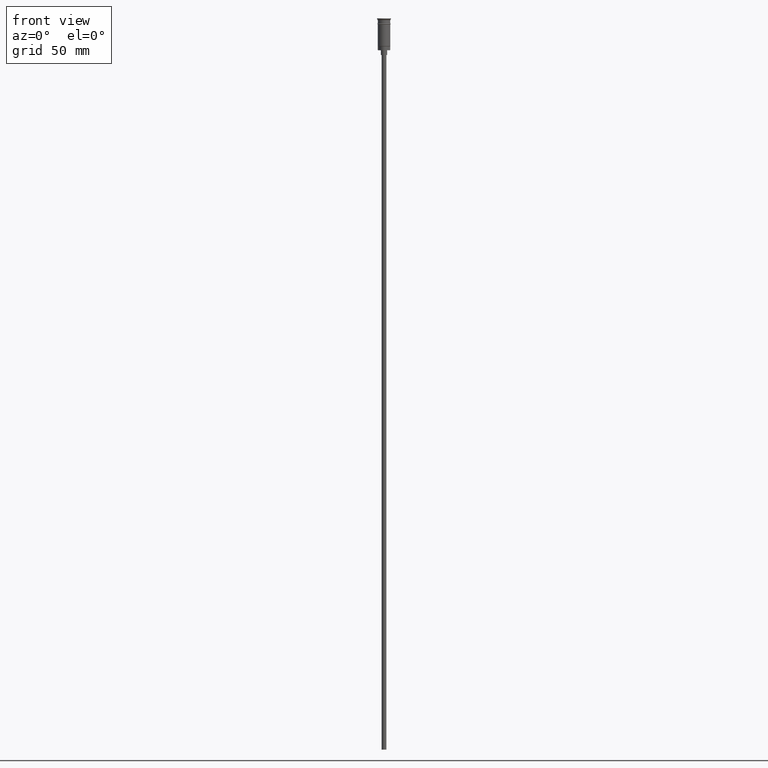
[diagram: clean part render]
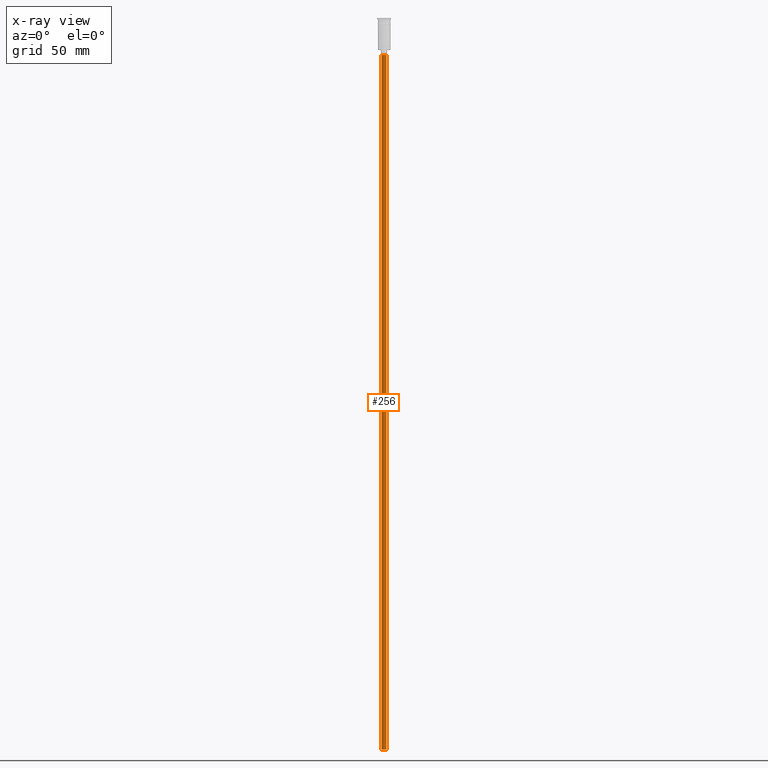
[diagram: x-ray — body ghosted, one internal face saturated and labeled with its STEP entity id]
A machine part, front view, then the same camera in x-ray: the body is ghosted and one INTERNAL B-rep face — a face not visible from any outside direction — is saturated and labeled: STEP entity #256.
In plain terms, the highlighted cylindrical surface (edge-blend (fillet) strip) has radius 1.5 mm, axis along (-0, -0, 1).
Its self-contained STEP definition (entity closure, byte-faithful):
#9 = CARTESIAN_POINT ( 'NONE',  ( 0.000000000000000000, 0.000000000000000000, -470.5000000000000568 ) ) ;
#71 = VECTOR ( 'NONE', #627, 1000.000000000000000 ) ;
#114 = VERTEX_POINT ( 'NONE', #1165 ) ;
#129 = DIRECTION ( 'NONE',  ( -1.000000000000000000, 0.000000000000000000, 0.000000000000000000 ) ) ;
#130 = CARTESIAN_POINT ( 'NONE',  ( -1.500000000000000222, 1.836970198721030181E-16, -470.5000000000000568 ) ) ;
#256 = ADVANCED_FACE ( 'NONE', ( #1451 ), #728, .T. ) ;
#358 = DIRECTION ( 'NONE',  ( -0.000000000000000000, -0.000000000000000000, 1.000000000000000000 ) ) ;
#368 = EDGE_CURVE ( 'NONE', #673, #114, #785, .T. ) ;
#382 = EDGE_LOOP ( 'NONE', ( #495, #1078, #1338, #712 ) ) ;
#392 = VERTEX_POINT ( 'NONE', #1518 ) ;
#495 = ORIENTED_EDGE ( 'NONE', *, *, #368, .F. ) ;
#554 = AXIS2_PLACEMENT_3D ( 'NONE', #9, #1128, #625 ) ;
#621 = CARTESIAN_POINT ( 'NONE',  ( 1.500000000000000222, 0.000000000000000000, -23.49999999999999645 ) ) ;
#625 = DIRECTION ( 'NONE',  ( -1.000000000000000000, 0.000000000000000000, 0.000000000000000000 ) ) ;
#627 = DIRECTION ( 'NONE',  ( -0.000000000000000000, -0.000000000000000000, 1.000000000000000000 ) ) ;
#673 = VERTEX_POINT ( 'NONE', #1322 ) ;
#712 = ORIENTED_EDGE ( 'NONE', *, *, #800, .T. ) ;
#728 = CYLINDRICAL_SURFACE ( 'NONE', #1051, 1.500000000000000222 ) ;
#785 = LINE ( 'NONE', #130, #71 ) ;
#800 = EDGE_CURVE ( 'NONE', #1511, #114, #1064, .T. ) ;
#828 = EDGE_CURVE ( 'NONE', #392, #673, #908, .T. ) ;
#843 = LINE ( 'NONE', #1211, #889 ) ;
#863 = AXIS2_PLACEMENT_3D ( 'NONE', #867, #1378, #129 ) ;
#867 = CARTESIAN_POINT ( 'NONE',  ( 0.000000000000000000, 0.000000000000000000, -23.49999999999999645 ) ) ;
#889 = VECTOR ( 'NONE', #1469, 1000.000000000000000 ) ;
#908 = CIRCLE ( 'NONE', #554, 1.500000000000000222 ) ;
#1051 = AXIS2_PLACEMENT_3D ( 'NONE', #1210, #358, #1217 ) ;
#1064 = CIRCLE ( 'NONE', #863, 1.500000000000000222 ) ;
#1078 = ORIENTED_EDGE ( 'NONE', *, *, #828, .F. ) ;
#1128 = DIRECTION ( 'NONE',  ( 0.000000000000000000, 0.000000000000000000, -1.000000000000000000 ) ) ;
#1165 = CARTESIAN_POINT ( 'NONE',  ( -1.500000000000000222, 1.836970198721030181E-16, -23.49999999999999645 ) ) ;
#1210 = CARTESIAN_POINT ( 'NONE',  ( 0.000000000000000000, 0.000000000000000000, -470.5000000000000568 ) ) ;
#1211 = CARTESIAN_POINT ( 'NONE',  ( 1.500000000000000222, 0.000000000000000000, -470.5000000000000568 ) ) ;
#1217 = DIRECTION ( 'NONE',  ( 1.000000000000000000, 0.000000000000000000, 0.000000000000000000 ) ) ;
#1322 = CARTESIAN_POINT ( 'NONE',  ( -1.500000000000000222, 1.836970198721030181E-16, -470.5000000000000568 ) ) ;
#1338 = ORIENTED_EDGE ( 'NONE', *, *, #1537, .T. ) ;
#1378 = DIRECTION ( 'NONE',  ( 0.000000000000000000, 0.000000000000000000, -1.000000000000000000 ) ) ;
#1451 = FACE_OUTER_BOUND ( 'NONE', #382, .T. ) ;
#1469 = DIRECTION ( 'NONE',  ( -0.000000000000000000, -0.000000000000000000, 1.000000000000000000 ) ) ;
#1511 = VERTEX_POINT ( 'NONE', #621 ) ;
#1518 = CARTESIAN_POINT ( 'NONE',  ( 1.500000000000000222, 0.000000000000000000, -470.5000000000000568 ) ) ;
#1537 = EDGE_CURVE ( 'NONE', #392, #1511, #843, .T. ) ;